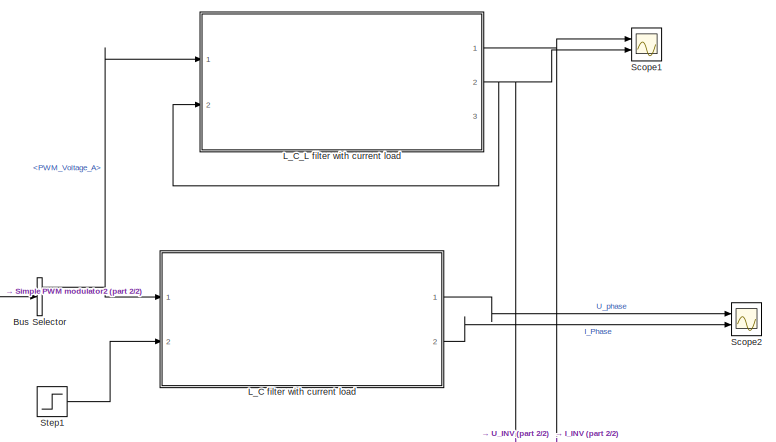
[diagram: root canvas - part 1/2, middle right region]
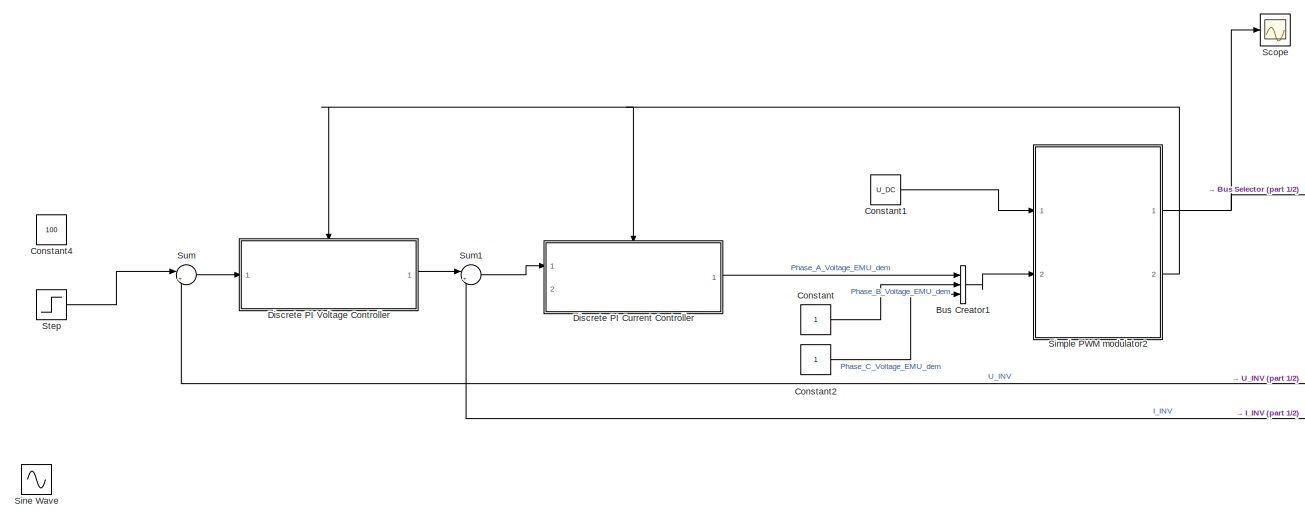
[diagram: root canvas - part 2/2, left side, full height]
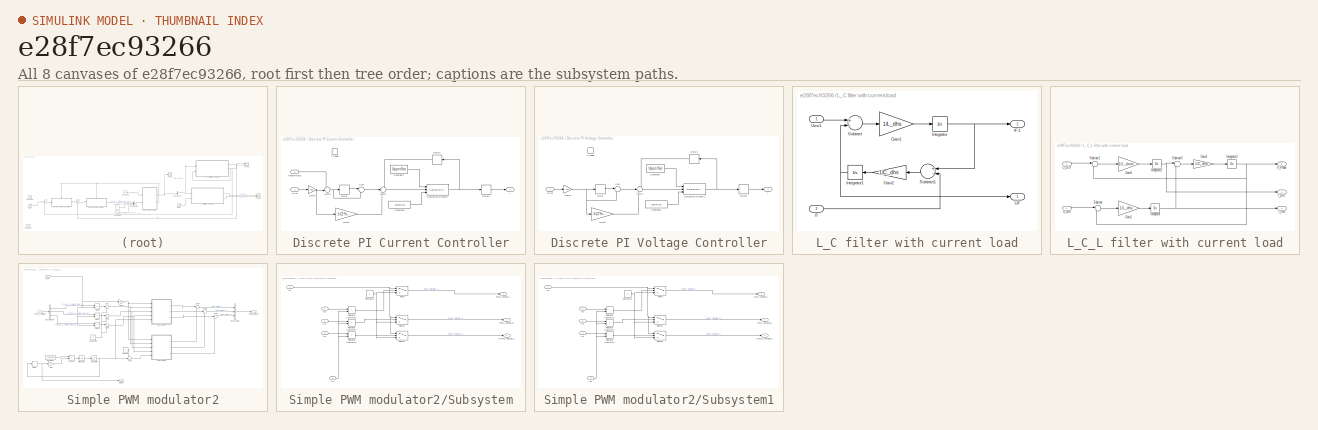
[diagram: thumbnail index - all 8 canvases of the model, root first then tree order]
MODEL slx_e28f7ec93266
KIND model
CONFIG AbsTol = auto
CONFIG EnableMultiTasking = off
CONFIG FixedStep = auto
CONFIG MaxStep = auto
CONFIG MinStep = auto
CONFIG RelTol = 1e-3
CONFIG SampleTimeConstraint = Unconstrained
CONFIG Solver = VariableStepAuto
CONFIG SolverName = VariableStepAuto
CONFIG StartTime = 0.0
CONFIG StopTime = 00.5
BLOCK [BusCreator] Bus Creator1
  DisplayOption = bar
  InheritFromInputs = on
  Inputs = 3
  Ports = [3, 1]
BLOCK [BusSelector] Bus Selector
  OutputAsBus = off
  OutputSignals = PWM_Voltage_A,PWM_Voltage_B,PWM_Voltage_C
  Ports = [1, 3]
BLOCK [Constant] Constant
BLOCK [Constant] Constant1
  Value = U_DC
BLOCK [Constant] Constant2
BLOCK [Constant] Constant4
  Value = 100
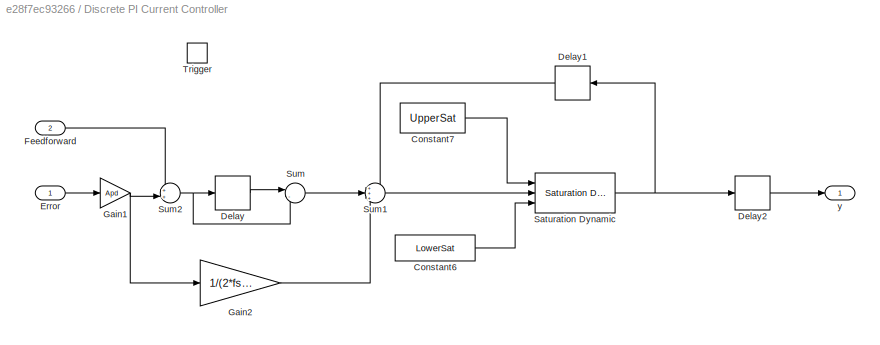
BLOCK [SubSystem] Discrete PI Current Controller
  AncestorBlock = controllers/Discrete PI Controller
  Ports = [2, 1, 0, 1]
  RequestExecContextInheritance = off
BLOCK [Constant] Discrete PI Current Controller/Constant6
  Value = LowerSat
BLOCK [Constant] Discrete PI Current Controller/Constant7
  Value = UpperSat
BLOCK [Delay] Discrete PI Current Controller/Delay
  DelayLength = 1
  InputPortMap = u0
  Ports = [1, 1]
BLOCK [Delay] Discrete PI Current Controller/Delay1
  DelayLength = 1
  InputPortMap = u0
  Ports = [1, 1]
BLOCK [Delay] Discrete PI Current Controller/Delay2
  DelayLength = 1
  InputPortMap = u0
  Ports = [1, 1]
BLOCK [Inport] Discrete PI Current Controller/Error
  IconDisplay = Port number
BLOCK [Inport] Discrete PI Current Controller/Feedforward
  IconDisplay = Port number
  Port = 2
BLOCK [Gain] Discrete PI Current Controller/Gain1
  Gain = Apd
  OutDataTypeStr = Inherit: Inherit via internal rule
  ParamDataTypeStr = Inherit: Inherit via internal rule
  SaturateOnIntegerOverflow = off
BLOCK [Gain] Discrete PI Current Controller/Gain2
  Gain = 1/(2*fs*Tid)
  OutDataTypeStr = Inherit: Inherit via internal rule
  ParamDataTypeStr = Inherit: Inherit via internal rule
  SaturateOnIntegerOverflow = off
BLOCK [Reference] Discrete PI Current Controller/Saturation Dynamic  REF=simulink/Discontinuities/Saturation
Dynamic
  Ports = [3, 1]
  SourceBlock = simulink/Discontinuities/Saturation\nDynamic
  SourceProductBaseCode = SL
  SourceProductName = Simulink
  SourceType = Saturation Dynamic
BLOCK [Sum] Discrete PI Current Controller/Sum
  IconShape = round
  InputSameDT = off
  Inputs = |-+
  OutDataTypeStr = Inherit: Inherit via internal rule
  Ports = [2, 1]
  SaturateOnIntegerOverflow = off
BLOCK [Sum] Discrete PI Current Controller/Sum1
  IconShape = round
  InputSameDT = off
  Inputs = +++
  OutDataTypeStr = Inherit: Inherit via internal rule
  Ports = [3, 1]
  SaturateOnIntegerOverflow = off
BLOCK [Sum] Discrete PI Current Controller/Sum2
  IconShape = round
  InputSameDT = off
  Inputs = ++|
  OutDataTypeStr = Inherit: Inherit via internal rule
  Ports = [2, 1]
  SaturateOnIntegerOverflow = off
BLOCK [TriggerPort] Discrete PI Current Controller/Trigger
  PortDimensions = 1
  Ports = []
  StatesWhenEnabling = held
  TriggerType = either
  VariantControl = Variant
BLOCK [Outport] Discrete PI Current Controller/y
  IconDisplay = Port number
BLOCK [SubSystem] Discrete PI Voltage Controller
  AncestorBlock = controllers/Discrete PI Controller
  Ports = [1, 1, 0, 1]
  RequestExecContextInheritance = off
BLOCK [Constant] Discrete PI Voltage Controller/Constant6
  Value = LowerSat
BLOCK [Constant] Discrete PI Voltage Controller/Constant7
  Value = UpperSat
BLOCK [Delay] Discrete PI Voltage Controller/Delay
  DelayLength = 1
  InputPortMap = u0
  Ports = [1, 1]
BLOCK [Delay] Discrete PI Voltage Controller/Delay1
  DelayLength = 1
  InputPortMap = u0
  Ports = [1, 1]
BLOCK [Delay] Discrete PI Voltage Controller/Delay2
  DelayLength = 1
  InputPortMap = u0
  Ports = [1, 1]
BLOCK [Inport] Discrete PI Voltage Controller/Error
  IconDisplay = Port number
BLOCK [Gain] Discrete PI Voltage Controller/Gain1
  Gain = Apd
  OutDataTypeStr = Inherit: Inherit via internal rule
  ParamDataTypeStr = Inherit: Inherit via internal rule
  SaturateOnIntegerOverflow = off
BLOCK [Gain] Discrete PI Voltage Controller/Gain2
  Gain = 1/(2*fs*Tid)
  OutDataTypeStr = Inherit: Inherit via internal rule
  ParamDataTypeStr = Inherit: Inherit via internal rule
  SaturateOnIntegerOverflow = off
BLOCK [Reference] Discrete PI Voltage Controller/Saturation Dynamic  REF=simulink/Discontinuities/Saturation
Dynamic
  Ports = [3, 1]
  SourceBlock = simulink/Discontinuities/Saturation\nDynamic
  SourceProductBaseCode = SL
  SourceProductName = Simulink
  SourceType = Saturation Dynamic
BLOCK [Sum] Discrete PI Voltage Controller/Sum
  IconShape = round
  InputSameDT = off
  Inputs = |-+
  OutDataTypeStr = Inherit: Inherit via internal rule
  Ports = [2, 1]
  SaturateOnIntegerOverflow = off
BLOCK [Sum] Discrete PI Voltage Controller/Sum1
  IconShape = round
  InputSameDT = off
  Inputs = +++
  OutDataTypeStr = Inherit: Inherit via internal rule
  Ports = [3, 1]
  SaturateOnIntegerOverflow = off
BLOCK [TriggerPort] Discrete PI Voltage Controller/Trigger
  PortDimensions = 1
  Ports = []
  StatesWhenEnabling = held
  TriggerType = either
  VariantControl = Variant
BLOCK [Outport] Discrete PI Voltage Controller/y
  IconDisplay = Port number
BLOCK [SubSystem] L_C filter with current load
  Ports = [2, 2]
  RequestExecContextInheritance = off
BLOCK [Gain] L_C filter with current load/Gain1
  Gain = 1/L_dhs
  OutDataTypeStr = Inherit: Inherit via internal rule
  ParamDataTypeStr = Inherit: Inherit via internal rule
  SaturateOnIntegerOverflow = off
BLOCK [Gain] L_C filter with current load/Gain2
  Gain = 1/C_dhs
  OutDataTypeStr = Inherit: Inherit via internal rule
  ParamDataTypeStr = Inherit: Inherit via internal rule
  SaturateOnIntegerOverflow = off
BLOCK [Outport] L_C filter with current load/IF1
  IconDisplay = Port number
  Port = 2
BLOCK [Inport] L_C filter with current load/IT
  IconDisplay = Port number
  Port = 2
BLOCK [Integrator] L_C filter with current load/Integrator
  Ports = [1, 1]
BLOCK [Integrator] L_C filter with current load/Integrator1
  Ports = [1, 1]
BLOCK [Sum] L_C filter with current load/Subtract
  InputSameDT = off
  Inputs = +-
  OutDataTypeStr = Inherit: Inherit via internal rule
  Ports = [2, 1]
  SaturateOnIntegerOverflow = off
BLOCK [Sum] L_C filter with current load/Subtract1
  InputSameDT = off
  Inputs = +-
  OutDataTypeStr = Inherit: Inherit via internal rule
  Ports = [2, 1]
  SaturateOnIntegerOverflow = off
BLOCK [Outport] L_C filter with current load/UF
  IconDisplay = Port number
BLOCK [Inport] L_C filter with current load/Uinv1
  IconDisplay = Port number
BLOCK [SubSystem] L_C_L filter with current load
  Ports = [2, 3]
  RequestExecContextInheritance = off
BLOCK [Gain] L_C_L filter with current load/Gain1
  Gain = 1/L_dhs
  OutDataTypeStr = Inherit: Inherit via internal rule
  ParamDataTypeStr = Inherit: Inherit via internal rule
  SaturateOnIntegerOverflow = off
BLOCK [Gain] L_C_L filter with current load/Gain3
  Gain = 1/L_drom
  OutDataTypeStr = Inherit: Inherit via internal rule
  ParamDataTypeStr = Inherit: Inherit via internal rule
  SaturateOnIntegerOverflow = off
BLOCK [Gain] L_C_L filter with current load/Gain4
  Gain = 1/C_dhs
  OutDataTypeStr = Inherit: Inherit via internal rule
  ParamDataTypeStr = Inherit: Inherit via internal rule
  SaturateOnIntegerOverflow = off
BLOCK [Outport] L_C_L filter with current load/I_DUT
  IconDisplay = Port number
  Port = 3
BLOCK [Outport] L_C_L filter with current load/I_INV
  IconDisplay = Port number
BLOCK [Integrator] L_C_L filter with current load/Integrator
  Ports = [1, 1]
BLOCK [Integrator] L_C_L filter with current load/Integrator2
  Ports = [1, 1]
BLOCK [Integrator] L_C_L filter with current load/Integrator3
  Ports = [1, 1]
BLOCK [Sum] L_C_L filter with current load/Subtract
  IconShape = round
  InputSameDT = off
  Inputs = |+-
  OutDataTypeStr = Inherit: Inherit via internal rule
  Ports = [2, 1]
  SaturateOnIntegerOverflow = off
BLOCK [Sum] L_C_L filter with current load/Subtract2
  IconShape = round
  InputSameDT = off
  Inputs = |+-
  OutDataTypeStr = Inherit: Inherit via internal rule
  Ports = [2, 1]
  SaturateOnIntegerOverflow = off
BLOCK [Sum] L_C_L filter with current load/Subtract3
  IconShape = round
  InputSameDT = off
  Inputs = |++
  OutDataTypeStr = Inherit: Inherit via internal rule
  Ports = [2, 1]
  SaturateOnIntegerOverflow = off
BLOCK [Inport] L_C_L filter with current load/U_DUT
  IconDisplay = Port number
  Port = 2
BLOCK [Inport] L_C_L filter with current load/U_INV
  IconDisplay = Port number
BLOCK [Outport] L_C_L filter with current load/U_Phase
  IconDisplay = Port number
  Port = 2
BLOCK [Scope] Scope
  Floating = off
  NumInputPorts = 1
  Ports = [1]
  ScopeSpecificationString = Simulink.scopes.TimeScopeBlockCfg('CurrentConfiguration', extmgr.ConfigurationSet(extmgr.Configuration('Core','General UI',true),extmgr.Configuration('Core','Source UI',true),extmgr.Configuration('Sources','WiredSimulink',true,'DataLoggingVariableName','ScopeData1'),extmgr.Configuration('Visuals','Time Domain',true,'SerializedDisplays',{struct('MinYLimReal','-87.5','MaxYLimReal','787.5','YLabelRea...<+1536ch>
BLOCK [Scope] Scope1
  Floating = off
  NumInputPorts = 2
  Ports = [2]
  ScopeSpecificationString = Simulink.scopes.TimeScopeBlockCfg('CurrentConfiguration', extmgr.ConfigurationSet(extmgr.Configuration('Core','General UI',true),extmgr.Configuration('Core','Source UI',true),extmgr.Configuration('Sources','WiredSimulink',true,'DataLoggingVariableName','ScopeData1'),extmgr.Configuration('Visuals','Time Domain',true,'SerializedDisplays',{struct('MinYLimReal','-24.26943','MaxYLimReal','131.04124','Y...<+1408ch>
BLOCK [Scope] Scope2
  Floating = off
  NumInputPorts = 2
  Ports = [2]
  ScopeSpecificationString = Simulink.scopes.TimeScopeBlockCfg('CurrentConfiguration', extmgr.ConfigurationSet(extmgr.Configuration('Core','General UI',true),extmgr.Configuration('Core','Source UI',true),extmgr.Configuration('Sources','WiredSimulink',true),extmgr.Configuration('Visuals','Time Domain',true,'SerializedDisplays',{struct('MinYLimReal','-26.1654','MaxYLimReal','139.24902','YLabelReal','','MinYLimMag','0.00000','Ma...<+1779ch>
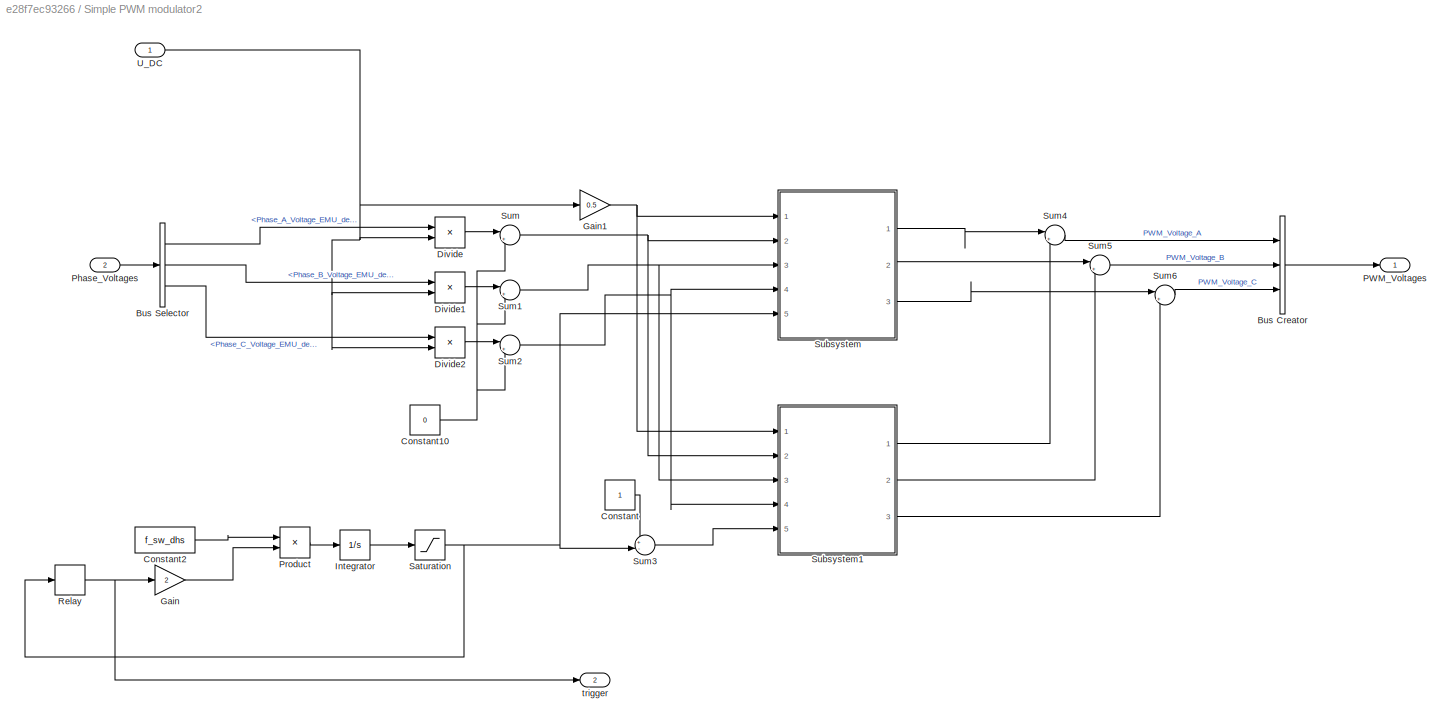
BLOCK [SubSystem] Simple PWM modulator2
  AncestorBlock = controllers/Simple PWM modulator
  Ports = [2, 2]
  RequestExecContextInheritance = off
BLOCK [BusCreator] Simple PWM modulator2/Bus Creator
  DisplayOption = bar
  InheritFromInputs = on
  Inputs = 3
  Ports = [3, 1]
BLOCK [BusSelector] Simple PWM modulator2/Bus Selector
  OutputAsBus = off
  OutputSignals = Phase_A_Voltage_EMU_dem,Phase_B_Voltage_EMU_dem,Phase_C_Voltage_EMU_dem
  Ports = [1, 3]
BLOCK [Constant] Simple PWM modulator2/Constant
BLOCK [Constant] Simple PWM modulator2/Constant10
  Value = 0
BLOCK [Constant] Simple PWM modulator2/Constant2
  Value = f_sw_dhs
BLOCK [Product] Simple PWM modulator2/Divide
  InputSameDT = off
  Inputs = */
  OutDataTypeStr = Inherit: Inherit via internal rule
  Ports = [2, 1]
  RndMeth = Floor
  SaturateOnIntegerOverflow = off
BLOCK [Product] Simple PWM modulator2/Divide1
  InputSameDT = off
  Inputs = */
  OutDataTypeStr = Inherit: Inherit via internal rule
  Ports = [2, 1]
  RndMeth = Floor
  SaturateOnIntegerOverflow = off
BLOCK [Product] Simple PWM modulator2/Divide2
  InputSameDT = off
  Inputs = */
  OutDataTypeStr = Inherit: Inherit via internal rule
  Ports = [2, 1]
  RndMeth = Floor
  SaturateOnIntegerOverflow = off
BLOCK [Gain] Simple PWM modulator2/Gain
  Gain = 2
  OutDataTypeStr = Inherit: Inherit via internal rule
  ParamDataTypeStr = Inherit: Inherit via internal rule
  SaturateOnIntegerOverflow = off
BLOCK [Gain] Simple PWM modulator2/Gain1
  Gain = 0.5
  OutDataTypeStr = Inherit: Inherit via internal rule
  ParamDataTypeStr = Inherit: Inherit via internal rule
  SaturateOnIntegerOverflow = off
BLOCK [Integrator] Simple PWM modulator2/Integrator
  Ports = [1, 1]
BLOCK [Outport] Simple PWM modulator2/PWM_Voltages
  IconDisplay = Port number
BLOCK [Inport] Simple PWM modulator2/Phase_Voltages
  IconDisplay = Port number
  Port = 2
BLOCK [Product] Simple PWM modulator2/Product
  InputSameDT = off
  OutDataTypeStr = Inherit: Inherit via internal rule
  Ports = [2, 1]
  RndMeth = Floor
  SaturateOnIntegerOverflow = off
BLOCK [Relay] Simple PWM modulator2/Relay
  OffOutputValue = 1
  OffSwitchValue = 0
  OnOutputValue = -1
  OnSwitchValue = 1
BLOCK [Saturate] Simple PWM modulator2/Saturation
  InputPortMap = u0
  LowerLimit = 0
  Ports = [1, 1]
  UpperLimit = 1
BLOCK [SubSystem] Simple PWM modulator2/Subsystem
  Ports = [5, 3]
  RequestExecContextInheritance = off
BLOCK [Constant] Simple PWM modulator2/Subsystem/Constant9
  Value = 0
BLOCK [Inport] Simple PWM modulator2/Subsystem/In1
  IconDisplay = Port number
BLOCK [Inport] Simple PWM modulator2/Subsystem/In2
  IconDisplay = Port number
  Port = 2
BLOCK [Inport] Simple PWM modulator2/Subsystem/In3
  IconDisplay = Port number
  Port = 3
BLOCK [Inport] Simple PWM modulator2/Subsystem/In4
  IconDisplay = Port number
  Port = 4
BLOCK [Inport] Simple PWM modulator2/Subsystem/In5
  IconDisplay = Port number
  Port = 5
BLOCK [Outport] Simple PWM modulator2/Subsystem/OPWM_Voltage_C
  IconDisplay = Port number
  Port = 3
BLOCK [Outport] Simple PWM modulator2/Subsystem/PWM_Voltage_A
  IconDisplay = Port number
BLOCK [Outport] Simple PWM modulator2/Subsystem/PWM_Voltage_B
  IconDisplay = Port number
  Port = 2
BLOCK [RelationalOperator] Simple PWM modulator2/Subsystem/Relational Operator3
  InputSameDT = off
  Operator = >
  OutDataTypeStr = boolean
  Ports = [2, 1]
  RndMeth = Simplest
BLOCK [RelationalOperator] Simple PWM modulator2/Subsystem/Relational Operator4
  InputSameDT = off
  Operator = >
  OutDataTypeStr = boolean
  Ports = [2, 1]
  RndMeth = Simplest
BLOCK [RelationalOperator] Simple PWM modulator2/Subsystem/Relational Operator5
  InputSameDT = off
  Operator = >
  OutDataTypeStr = boolean
  Ports = [2, 1]
  RndMeth = Simplest
BLOCK [Switch] Simple PWM modulator2/Subsystem/Switch
  InputSameDT = off
  SaturateOnIntegerOverflow = off
  Threshold = 1
BLOCK [Switch] Simple PWM modulator2/Subsystem/Switch1
  InputSameDT = off
  SaturateOnIntegerOverflow = off
  Threshold = 1
BLOCK [Switch] Simple PWM modulator2/Subsystem/Switch2
  InputSameDT = off
  SaturateOnIntegerOverflow = off
  Threshold = 1
BLOCK [SubSystem] Simple PWM modulator2/Subsystem1
  Ports = [5, 3]
  RequestExecContextInheritance = off
BLOCK [Constant] Simple PWM modulator2/Subsystem1/Constant9
  Value = 0
BLOCK [Inport] Simple PWM modulator2/Subsystem1/In1
  IconDisplay = Port number
BLOCK [Inport] Simple PWM modulator2/Subsystem1/In2
  IconDisplay = Port number
  Port = 2
BLOCK [Inport] Simple PWM modulator2/Subsystem1/In3
  IconDisplay = Port number
  Port = 3
BLOCK [Inport] Simple PWM modulator2/Subsystem1/In4
  IconDisplay = Port number
  Port = 4
BLOCK [Inport] Simple PWM modulator2/Subsystem1/In5
  IconDisplay = Port number
  Port = 5
BLOCK [Outport] Simple PWM modulator2/Subsystem1/OPWM_Voltage_C
  IconDisplay = Port number
  Port = 3
BLOCK [Outport] Simple PWM modulator2/Subsystem1/PWM_Voltage_A
  IconDisplay = Port number
BLOCK [Outport] Simple PWM modulator2/Subsystem1/PWM_Voltage_B
  IconDisplay = Port number
  Port = 2
BLOCK [RelationalOperator] Simple PWM modulator2/Subsystem1/Relational Operator3
  InputSameDT = off
  Operator = >
  OutDataTypeStr = boolean
  Ports = [2, 1]
  RndMeth = Simplest
BLOCK [RelationalOperator] Simple PWM modulator2/Subsystem1/Relational Operator4
  InputSameDT = off
  Operator = >
  OutDataTypeStr = boolean
  Ports = [2, 1]
  RndMeth = Simplest
BLOCK [RelationalOperator] Simple PWM modulator2/Subsystem1/Relational Operator5
  InputSameDT = off
  Operator = >
  OutDataTypeStr = boolean
  Ports = [2, 1]
  RndMeth = Simplest
BLOCK [Switch] Simple PWM modulator2/Subsystem1/Switch
  InputSameDT = off
  SaturateOnIntegerOverflow = off
  Threshold = 1
BLOCK [Switch] Simple PWM modulator2/Subsystem1/Switch1
  InputSameDT = off
  SaturateOnIntegerOverflow = off
  Threshold = 1
BLOCK [Switch] Simple PWM modulator2/Subsystem1/Switch2
  InputSameDT = off
  SaturateOnIntegerOverflow = off
  Threshold = 1
BLOCK [Sum] Simple PWM modulator2/Sum
  IconShape = round
  InputSameDT = off
  Inputs = |++
  OutDataTypeStr = Inherit: Inherit via internal rule
  Ports = [2, 1]
  SaturateOnIntegerOverflow = off
BLOCK [Sum] Simple PWM modulator2/Sum1
  IconShape = round
  InputSameDT = off
  Inputs = |++
  OutDataTypeStr = Inherit: Inherit via internal rule
  Ports = [2, 1]
  SaturateOnIntegerOverflow = off
BLOCK [Sum] Simple PWM modulator2/Sum2
  IconShape = round
  InputSameDT = off
  Inputs = |++
  OutDataTypeStr = Inherit: Inherit via internal rule
  Ports = [2, 1]
  SaturateOnIntegerOverflow = off
BLOCK [Sum] Simple PWM modulator2/Sum3
  IconShape = round
  InputSameDT = off
  Inputs = +-|
  OutDataTypeStr = Inherit: Inherit via internal rule
  Ports = [2, 1]
  SaturateOnIntegerOverflow = off
BLOCK [Sum] Simple PWM modulator2/Sum4
  IconShape = round
  InputSameDT = off
  Inputs = |++
  OutDataTypeStr = Inherit: Inherit via internal rule
  Ports = [2, 1]
  SaturateOnIntegerOverflow = off
BLOCK [Sum] Simple PWM modulator2/Sum5
  IconShape = round
  InputSameDT = off
  Inputs = |++
  OutDataTypeStr = Inherit: Inherit via internal rule
  Ports = [2, 1]
  SaturateOnIntegerOverflow = off
BLOCK [Sum] Simple PWM modulator2/Sum6
  IconShape = round
  InputSameDT = off
  Inputs = |++
  OutDataTypeStr = Inherit: Inherit via internal rule
  Ports = [2, 1]
  SaturateOnIntegerOverflow = off
BLOCK [Inport] Simple PWM modulator2/U_DC
  IconDisplay = Port number
BLOCK [Outport] Simple PWM modulator2/trigger
  IconDisplay = Port number
  Port = 2
BLOCK [Sin] Sine Wave
  Amplitude = 100
  Bias = 200
  Frequency = 2*pi*50
  Ports = [0, 1]
  SampleTime = 0
BLOCK [Step] Step
  After = 100
  Before = 10
  SampleTime = 0
  Time = 0.2
BLOCK [Step] Step1
  After = 50
  SampleTime = 0
  Time = 00.4
BLOCK [Sum] Sum
  IconShape = round
  InputSameDT = off
  Inputs = |+-
  OutDataTypeStr = Inherit: Inherit via internal rule
  Ports = [2, 1]
  SaturateOnIntegerOverflow = off
BLOCK [Sum] Sum1
  IconShape = round
  InputSameDT = off
  Inputs = |+-
  OutDataTypeStr = Inherit: Inherit via internal rule
  Ports = [2, 1]
  SaturateOnIntegerOverflow = off
LINE Bus Creator1:1 -> Simple PWM modulator2:2
NET Bus Selector:1 -> L_C filter with current load:1, L_C_L filter with current load:1
LINE Constant1:1 -> Simple PWM modulator2:1
LINE Constant2:1 -> Bus Creator1:3
LINE Constant:1 -> Bus Creator1:2
LINE Discrete PI Current Controller:1 -> Bus Creator1:1
LINE Discrete PI Voltage Controller:1 -> Sum1:1
LINE L_C filter with current load/Gain1:1 -> L_C filter with current load/Integrator:1
LINE L_C filter with current load/Gain2:1 -> L_C filter with current load/Integrator1:1
LINE L_C filter with current load/IT:1 -> L_C filter with current load/Subtract1:2
NET L_C filter with current load/Integrator1:1 -> L_C filter with current load/Subtract:2, L_C filter with current load/UF:1
NET L_C filter with current load/Integrator:1 -> L_C filter with current load/IF1:1, L_C filter with current load/Subtract1:1
LINE L_C filter with current load/Subtract1:1 -> L_C filter with current load/Gain2:1
LINE L_C filter with current load/Subtract:1 -> L_C filter with current load/Gain1:1
LINE L_C filter with current load/Uinv1:1 -> L_C filter with current load/Subtract:1
LINE L_C filter with current load:1 -> Scope2:1
LINE L_C filter with current load:2 -> Scope2:2
LINE L_C_L filter with current load/Gain1:1 -> L_C_L filter with current load/Integrator:1
LINE L_C_L filter with current load/Gain3:1 -> L_C_L filter with current load/Integrator2:1
LINE L_C_L filter with current load/Gain4:1 -> L_C_L filter with current load/Integrator3:1
NET L_C_L filter with current load/Integrator2:1 -> L_C_L filter with current load/I_DUT:1, L_C_L filter with current load/Subtract3:1
NET L_C_L filter with current load/Integrator3:1 -> L_C_L filter with current load/Subtract2:2, L_C_L filter with current load/Subtract:2, L_C_L filter with current load/U_Phase:1
NET L_C_L filter with current load/Integrator:1 -> L_C_L filter with current load/I_INV:1, L_C_L filter with current load/Subtract3:2
LINE L_C_L filter with current load/Subtract2:1 -> L_C_L filter with current load/Gain3:1
LINE L_C_L filter with current load/Subtract3:1 -> L_C_L filter with current load/Gain4:1
LINE L_C_L filter with current load/Subtract:1 -> L_C_L filter with current load/Gain1:1
LINE L_C_L filter with current load/U_DUT:1 -> L_C_L filter with current load/Subtract2:1
LINE L_C_L filter with current load/U_INV:1 -> L_C_L filter with current load/Subtract:1
NET L_C_L filter with current load:1 -> Scope1:1, Sum1:2
NET L_C_L filter with current load:2 -> L_C_L filter with current load:2, Scope1:2, Sum:2
NET Simple PWM modulator2:1 -> Bus Selector:1, Scope:1
NET Simple PWM modulator2:2 -> Discrete PI Current Controller:trigger, Discrete PI Voltage Controller:trigger
LINE Step1:1 -> L_C filter with current load:2
LINE Step:1 -> Sum:1
LINE Sum1:1 -> Discrete PI Current Controller:1
LINE Sum:1 -> Discrete PI Voltage Controller:1
note: NET lines group one-source signal fan-out (src -> all destinations, sorted); 1:1 wires keep LINE
